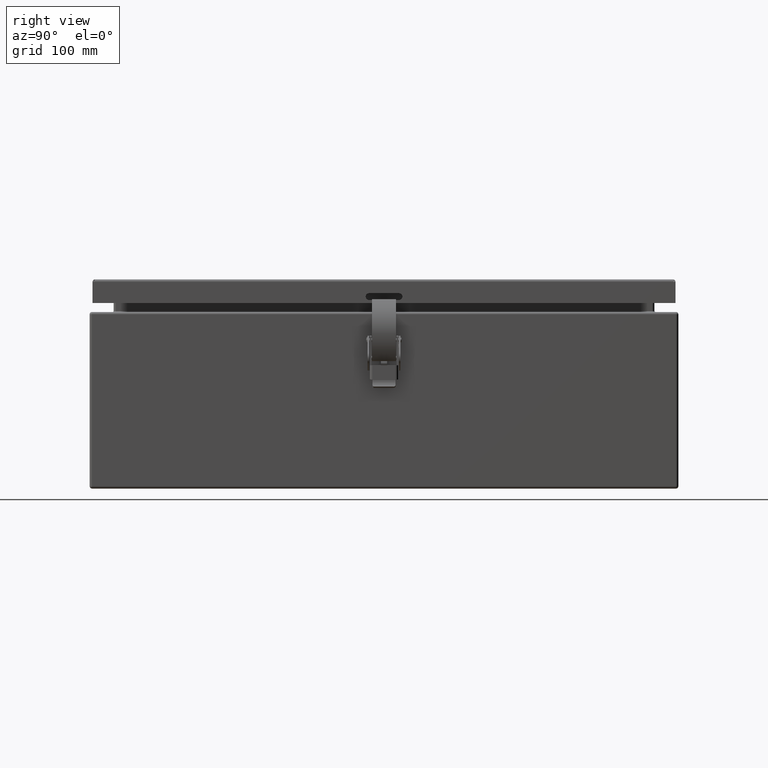
[diagram: clean part render]
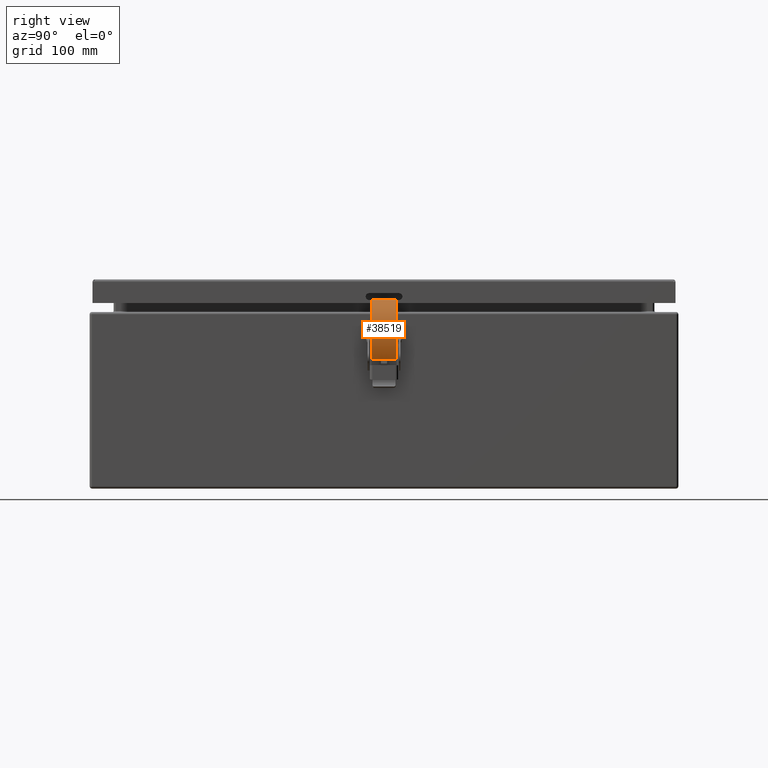
[diagram: same view with one face highlighted and labeled with its STEP entity id]
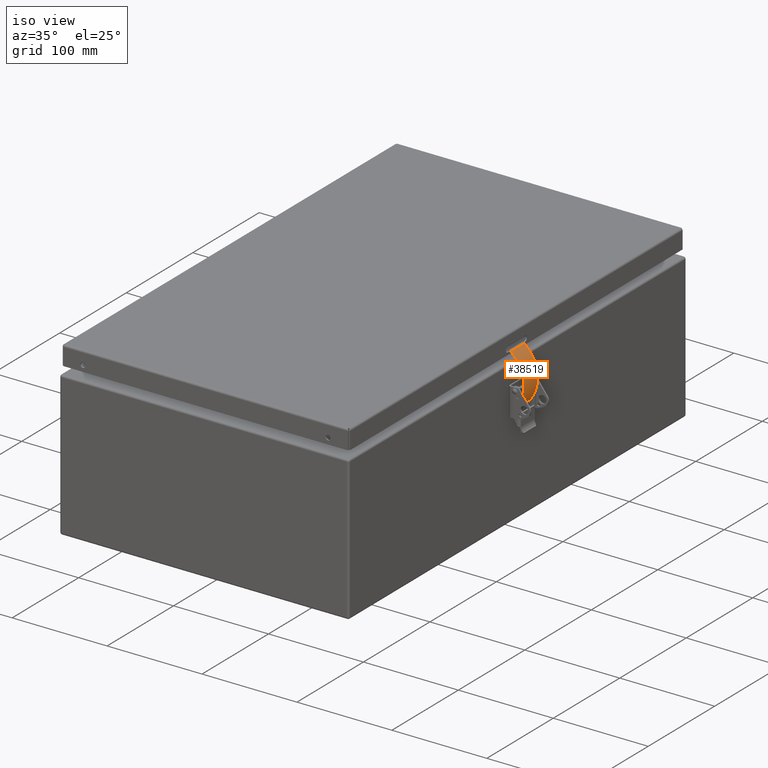
[diagram: same view with one face highlighted and labeled with its STEP entity id]
A machine part, right view. The second image highlights one B-rep face of the part: STEP entity #38519.
A second angle (iso view) of the same face is appended — the face is thin or edge-on in the first view.
In plain terms, the highlighted cylindrical surface (partial cylindrical patch) has radius 38.1824 mm, axis along (0, -1, 0).
Its self-contained STEP definition (entity closure, byte-faithful):
#5187=LINE('',#79533,#7389);
#5188=LINE('',#79537,#7390);
#7389=VECTOR('',#50101,0.393700787401575);
#7390=VECTOR('',#50106,0.393700787401575);
#8553=CYLINDRICAL_SURFACE('',#42349,1.503244094394);
#10565=FACE_OUTER_BOUND('',#12986,.T.);
#12986=EDGE_LOOP('',(#34154,#34155,#34156,#34157));
#14620=CIRCLE('',#42340,1.503244094394);
#14626=CIRCLE('',#42350,1.503244094394);
#17948=VERTEX_POINT('',#79516);
#17949=VERTEX_POINT('',#79518);
#17953=VERTEX_POINT('',#79532);
#17954=VERTEX_POINT('',#79536);
#23417=EDGE_CURVE('',#17949,#17948,#14620,.T.);
#23424=EDGE_CURVE('',#17953,#17949,#5187,.T.);
#23426=EDGE_CURVE('',#17954,#17948,#5188,.T.);
#23427=EDGE_CURVE('',#17954,#17953,#14626,.T.);
#34154=ORIENTED_EDGE('',*,*,#23417,.T.);
#34155=ORIENTED_EDGE('',*,*,#23426,.F.);
#34156=ORIENTED_EDGE('',*,*,#23427,.T.);
#34157=ORIENTED_EDGE('',*,*,#23424,.T.);
#38519=ADVANCED_FACE('',(#10565),#8553,.T.);
#42340=AXIS2_PLACEMENT_3D('',#79519,#50083,#50084);
#42349=AXIS2_PLACEMENT_3D('',#79535,#50104,#50105);
#42350=AXIS2_PLACEMENT_3D('',#79538,#50107,#50108);
#50083=DIRECTION('center_axis',(0.,0.,-1.));
#50084=DIRECTION('ref_axis',(0.734045408474044,-0.67910038896924,0.));
#50101=DIRECTION('',(0.,0.,1.));
#50104=DIRECTION('center_axis',(0.,0.,1.));
#50105=DIRECTION('ref_axis',(0.734045408474044,-0.67910038896924,0.));
#50106=DIRECTION('',(0.,0.,1.));
#50107=DIRECTION('center_axis',(0.,0.,1.));
#50108=DIRECTION('ref_axis',(0.734045408474044,-0.67910038896924,0.));
#79516=CARTESIAN_POINT('',(3.53034073231712,3.83589989583419,0.815));
#79518=CARTESIAN_POINT('',(3.52395991387982,5.88446128430846,0.815));
#79519=CARTESIAN_POINT('Origin',(2.42689102732997,4.85675380379956,0.815));
#79532=CARTESIAN_POINT('',(3.52395991387982,5.88446128430846,0.));
#79533=CARTESIAN_POINT('',(3.52395991387982,5.88446128430846,0.));
#79535=CARTESIAN_POINT('Origin',(2.42689102732997,4.85675380379956,0.));
#79536=CARTESIAN_POINT('',(3.53034073231712,3.83589989583419,0.));
#79537=CARTESIAN_POINT('',(3.53034073231712,3.83589989583419,0.));
#79538=CARTESIAN_POINT('Origin',(2.42689102732997,4.85675380379956,0.));